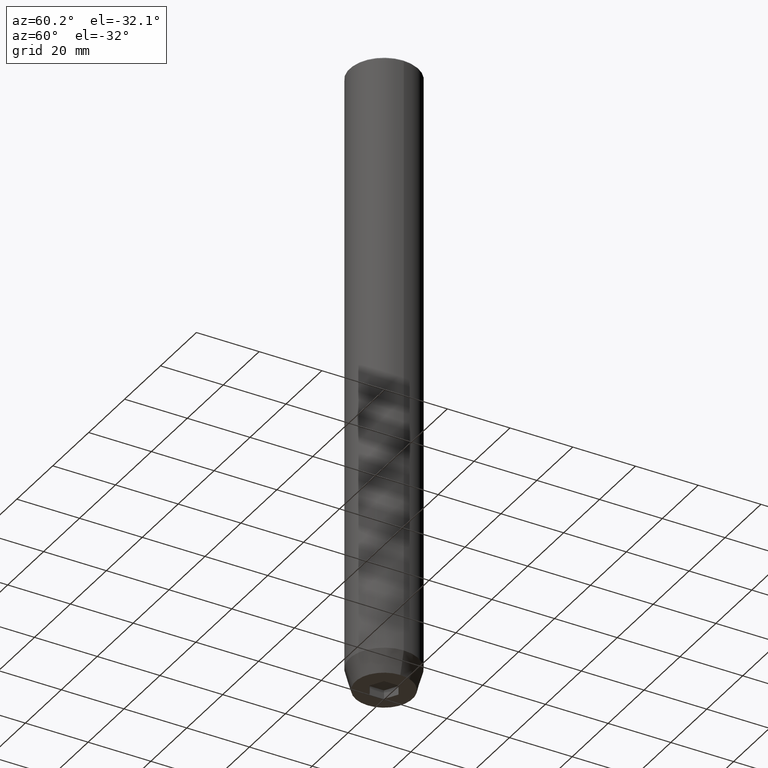
[diagram: clean part render]
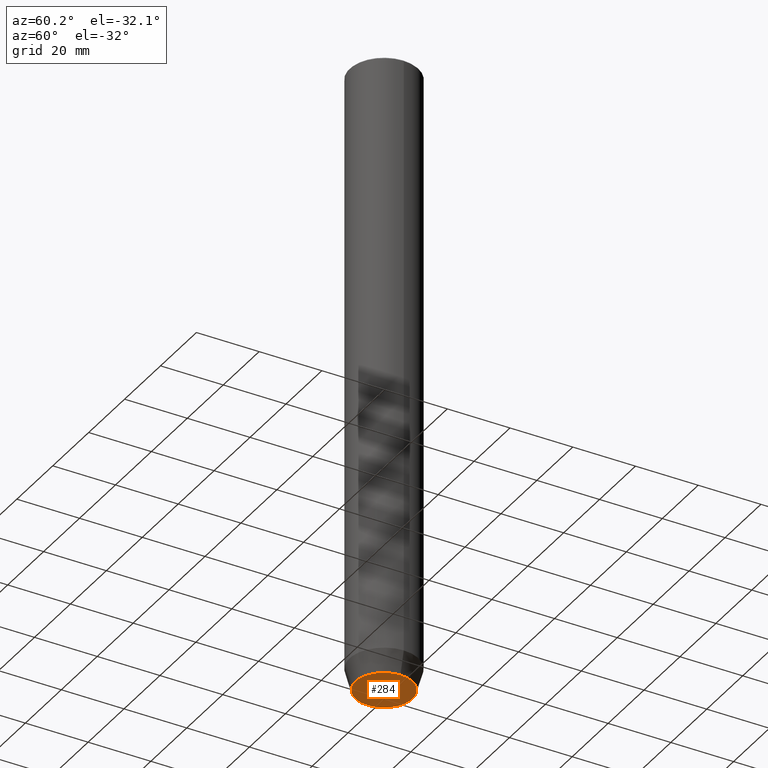
[diagram: same view with one face highlighted and labeled with its STEP entity id]
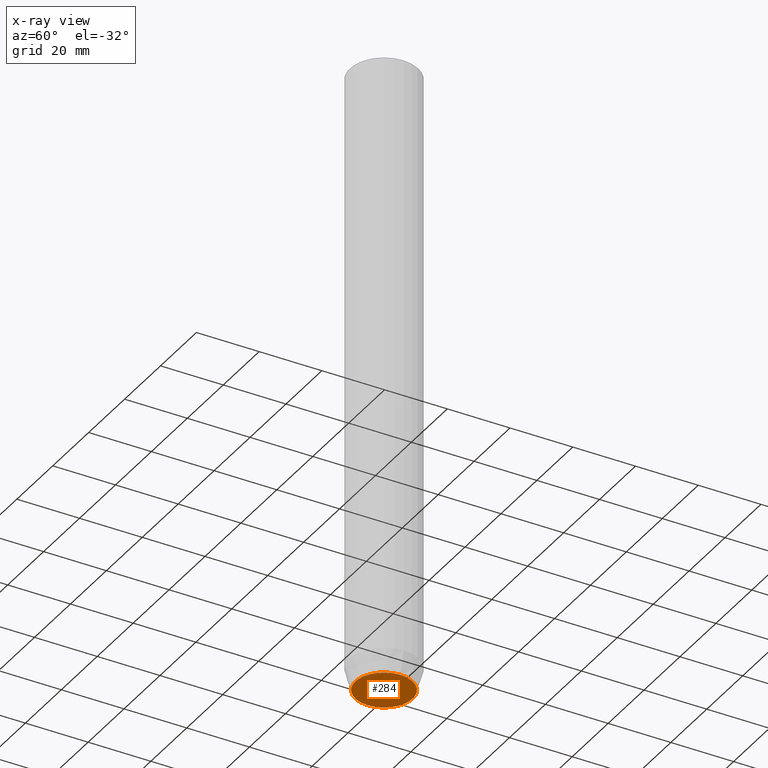
[diagram: x-ray of the same camera — body ghosted, the highlighted face saturated]
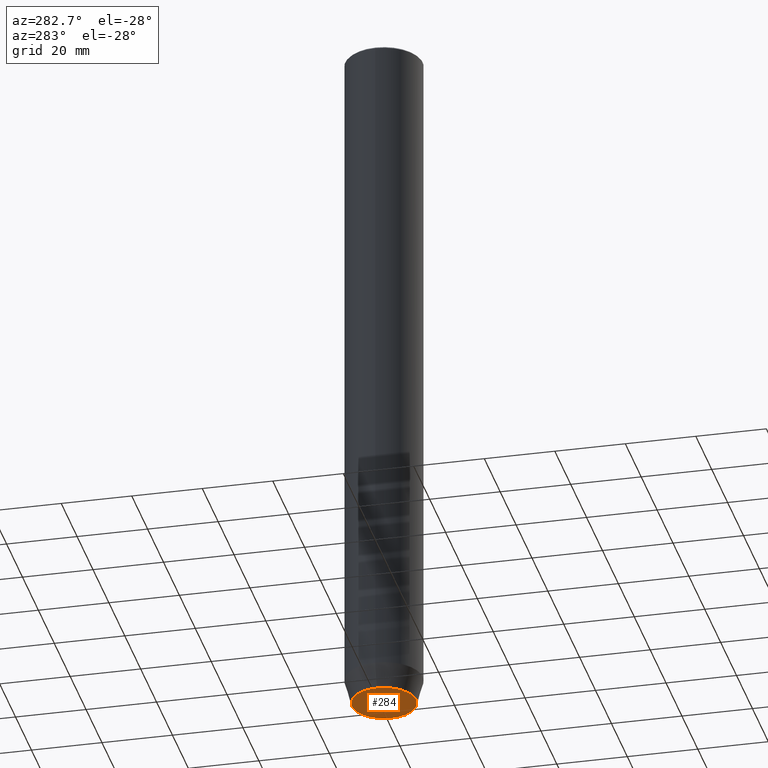
[diagram: same view with one face highlighted and labeled with its STEP entity id]
A machine part, auxiliary view. The second image highlights one B-rep face of the part: STEP entity #284.
The next image is the same camera in x-ray: the body ghosted, the highlighted face saturated — about 0% of this face is hidden behind the body in this view.
A second angle (auxiliary view) of the same face is appended — the face is thin or edge-on in the first view.
In plain terms, the highlighted planar face has unit normal (0, 0, -1).
Its self-contained STEP definition (entity closure, byte-faithful):
#1 = DIRECTION ( 'NONE',  ( 1.000000000000000000, 0.000000000000000000, 0.000000000000000000 ) ) ;
#3 = CARTESIAN_POINT ( 'NONE',  ( -4.000000000000000000, -2.309401076758503368, -200.0000000000000000 ) ) ;
#13 = VECTOR ( 'NONE', #44, 1000.000000000000000 ) ;
#19 = DIRECTION ( 'NONE',  ( 0.000000000000000000, -1.000000000000000000, 0.000000000000000000 ) ) ;
#23 = CARTESIAN_POINT ( 'NONE',  ( 2.000000000000000444, 3.464101615137754386, -200.0000000000000000 ) ) ;
#36 = LINE ( 'NONE', #486, #567 ) ;
#44 = DIRECTION ( 'NONE',  ( 0.000000000000000000, 1.000000000000000000, 0.000000000000000000 ) ) ;
#59 = EDGE_LOOP ( 'NONE', ( #319, #217, #502, #355, #374, #468 ) ) ;
#61 = CIRCLE ( 'NONE', #387, 9.124355652982133691 ) ;
#62 = CARTESIAN_POINT ( 'NONE',  ( -2.000000000000000888, -3.464101615137754386, -200.0000000000000000 ) ) ;
#65 = FACE_OUTER_BOUND ( 'NONE', #496, .T. ) ;
#71 = AXIS2_PLACEMENT_3D ( 'NONE', #382, #561, #114 ) ;
#78 = ORIENTED_EDGE ( 'NONE', *, *, #171, .F. ) ;
#80 = DIRECTION ( 'NONE',  ( -0.000000000000000000, -0.000000000000000000, 1.000000000000000000 ) ) ;
#83 = VECTOR ( 'NONE', #292, 1000.000000000000000 ) ;
#89 = CARTESIAN_POINT ( 'NONE',  ( -4.000000000000000000, 2.309401076758503368, -200.0000000000000000 ) ) ;
#107 = CARTESIAN_POINT ( 'NONE',  ( 9.124355652982133691, 0.000000000000000000, -200.0000000000000000 ) ) ;
#111 = CARTESIAN_POINT ( 'NONE',  ( -9.124355652982133691, 1.232261386766375507E-15, -200.0000000000000000 ) ) ;
#114 = DIRECTION ( 'NONE',  ( -1.000000000000000000, 0.000000000000000000, -0.000000000000000000 ) ) ;
#117 = VECTOR ( 'NONE', #256, 999.9999999999998863 ) ;
#139 = VERTEX_POINT ( 'NONE', #89 ) ;
#154 = EDGE_CURVE ( 'NONE', #303, #139, #457, .T. ) ;
#171 = EDGE_CURVE ( 'NONE', #272, #197, #437, .T. ) ;
#197 = VERTEX_POINT ( 'NONE', #107 ) ;
#199 = EDGE_CURVE ( 'NONE', #288, #303, #332, .T. ) ;
#217 = ORIENTED_EDGE ( 'NONE', *, *, #154, .F. ) ;
#235 = CARTESIAN_POINT ( 'NONE',  ( 2.168404344971008868E-16, 4.618802153517006737, -200.0000000000000000 ) ) ;
#243 = AXIS2_PLACEMENT_3D ( 'NONE', #414, #80, #1 ) ;
#244 = PLANE ( 'NONE',  #71 ) ;
#249 = VECTOR ( 'NONE', #19, 1000.000000000000000 ) ;
#251 = EDGE_CURVE ( 'NONE', #543, #254, #390, .T. ) ;
#254 = VERTEX_POINT ( 'NONE', #557 ) ;
#256 = DIRECTION ( 'NONE',  ( 0.8660254037844387076, 0.5000000000000001110, 0.000000000000000000 ) ) ;
#266 = CARTESIAN_POINT ( 'NONE',  ( -2.000000000000000000, 3.464101615137754830, -200.0000000000000000 ) ) ;
#269 = CARTESIAN_POINT ( 'NONE',  ( -4.000000000000000000, 0.000000000000000000, -200.0000000000000000 ) ) ;
#272 = VERTEX_POINT ( 'NONE', #111 ) ;
#284 = ADVANCED_FACE ( 'NONE', ( #522, #65 ), #244, .T. ) ;
#288 = VERTEX_POINT ( 'NONE', #294 ) ;
#289 = EDGE_CURVE ( 'NONE', #254, #418, #290, .T. ) ;
#290 = LINE ( 'NONE', #430, #249 ) ;
#292 = DIRECTION ( 'NONE',  ( 0.8660254037844385966, -0.5000000000000001110, 0.000000000000000000 ) ) ;
#294 = CARTESIAN_POINT ( 'NONE',  ( 4.336808689942017736E-16, -4.618802153517006737, -200.0000000000000000 ) ) ;
#303 = VERTEX_POINT ( 'NONE', #3 ) ;
#319 = ORIENTED_EDGE ( 'NONE', *, *, #391, .F. ) ;
#332 = LINE ( 'NONE', #62, #481 ) ;
#336 = DIRECTION ( 'NONE',  ( -0.8660254037844384856, 0.5000000000000002220, 0.000000000000000000 ) ) ;
#344 = EDGE_CURVE ( 'NONE', #418, #288, #36, .T. ) ;
#354 = CARTESIAN_POINT ( 'NONE',  ( 4.000000000000000000, -2.309401076758502480, -200.0000000000000000 ) ) ;
#355 = ORIENTED_EDGE ( 'NONE', *, *, #344, .F. ) ;
#374 = ORIENTED_EDGE ( 'NONE', *, *, #289, .F. ) ;
#382 = CARTESIAN_POINT ( 'NONE',  ( 0.000000000000000000, 9.124355652982133691, -200.0000000000000000 ) ) ;
#387 = AXIS2_PLACEMENT_3D ( 'NONE', #466, #422, #500 ) ;
#390 = LINE ( 'NONE', #23, #83 ) ;
#391 = EDGE_CURVE ( 'NONE', #139, #543, #530, .T. ) ;
#414 = CARTESIAN_POINT ( 'NONE',  ( 0.000000000000000000, 0.000000000000000000, -200.0000000000000000 ) ) ;
#418 = VERTEX_POINT ( 'NONE', #354 ) ;
#422 = DIRECTION ( 'NONE',  ( -0.000000000000000000, -0.000000000000000000, 1.000000000000000000 ) ) ;
#430 = CARTESIAN_POINT ( 'NONE',  ( 4.000000000000000000, 0.000000000000000000, -200.0000000000000000 ) ) ;
#437 = CIRCLE ( 'NONE', #243, 9.124355652982133691 ) ;
#456 = ORIENTED_EDGE ( 'NONE', *, *, #507, .F. ) ;
#457 = LINE ( 'NONE', #269, #13 ) ;
#466 = CARTESIAN_POINT ( 'NONE',  ( 0.000000000000000000, 0.000000000000000000, -200.0000000000000000 ) ) ;
#468 = ORIENTED_EDGE ( 'NONE', *, *, #251, .F. ) ;
#481 = VECTOR ( 'NONE', #336, 1000.000000000000114 ) ;
#486 = CARTESIAN_POINT ( 'NONE',  ( 2.000000000000000888, -3.464101615137754386, -200.0000000000000000 ) ) ;
#496 = EDGE_LOOP ( 'NONE', ( #456, #78 ) ) ;
#500 = DIRECTION ( 'NONE',  ( 1.000000000000000000, 0.000000000000000000, 0.000000000000000000 ) ) ;
#502 = ORIENTED_EDGE ( 'NONE', *, *, #199, .F. ) ;
#507 = EDGE_CURVE ( 'NONE', #197, #272, #61, .T. ) ;
#522 = FACE_BOUND ( 'NONE', #59, .T. ) ;
#530 = LINE ( 'NONE', #266, #117 ) ;
#543 = VERTEX_POINT ( 'NONE', #235 ) ;
#557 = CARTESIAN_POINT ( 'NONE',  ( 4.000000000000000000, 2.309401076758503368, -200.0000000000000000 ) ) ;
#561 = DIRECTION ( 'NONE',  ( 0.000000000000000000, 0.000000000000000000, -1.000000000000000000 ) ) ;
#567 = VECTOR ( 'NONE', #580, 1000.000000000000114 ) ;
#580 = DIRECTION ( 'NONE',  ( -0.8660254037844384856, -0.5000000000000002220, 0.000000000000000000 ) ) ;